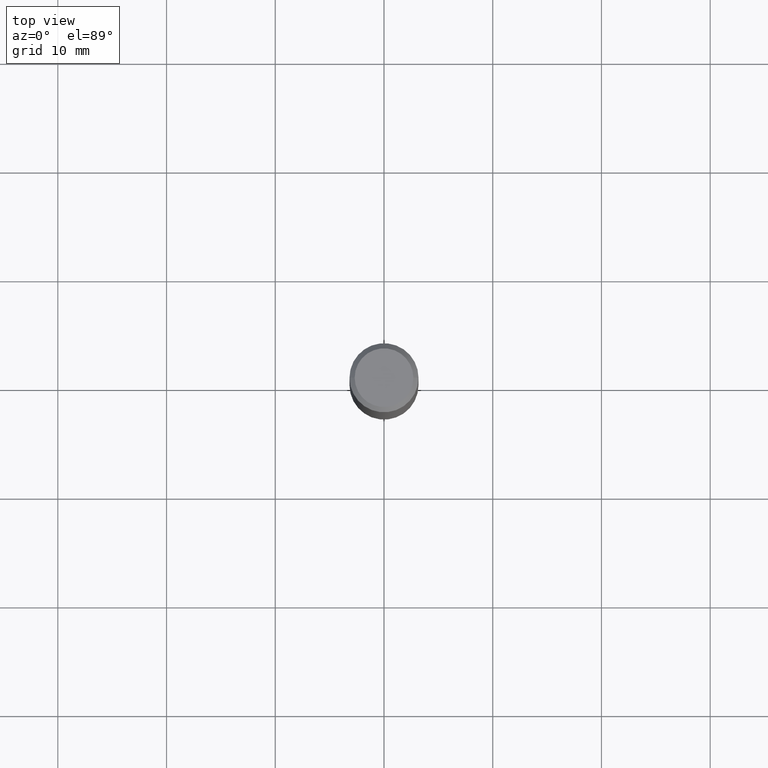
[diagram: clean part render]
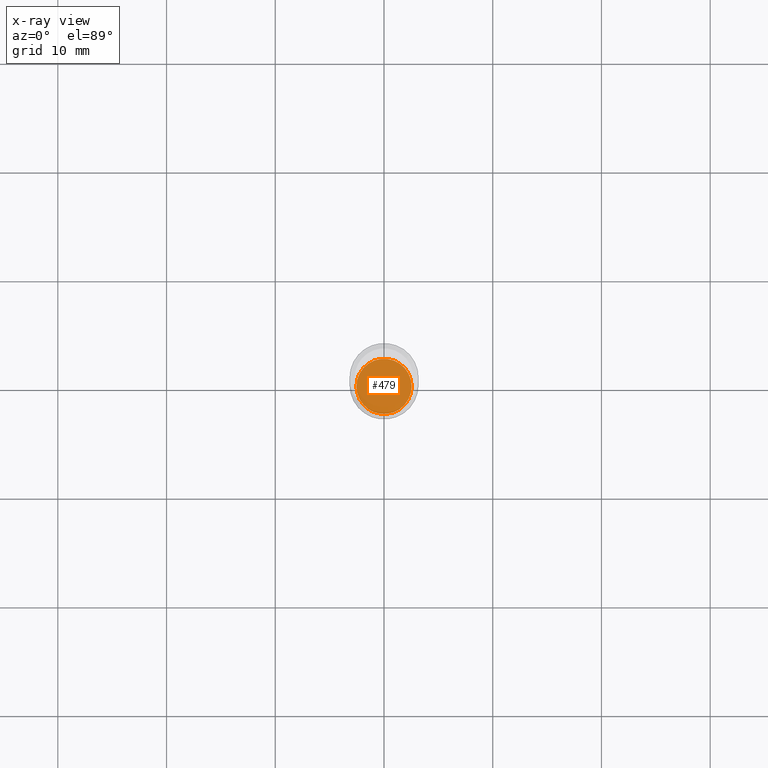
[diagram: x-ray — body ghosted, one internal face saturated and labeled with its STEP entity id]
A machine part, top view, then the same camera in x-ray: the body is ghosted and one INTERNAL B-rep face — a face not visible from any outside direction — is saturated and labeled: STEP entity #479.
In plain terms, the highlighted planar face has unit normal (-0, 0, 1).
Its self-contained STEP definition (entity closure, byte-faithful):
#4 = CIRCLE ( 'NONE', #188, 0.1000000000000000056 ) ;
#28 = AXIS2_PLACEMENT_3D ( 'NONE', #431, #394, #325 ) ;
#35 = DIRECTION ( 'NONE',  ( 1.000000000000000000, -6.982962677686264344E-15, 0.000000000000000000 ) ) ;
#67 = DIRECTION ( 'NONE',  ( -2.445468806185136597E-29, 3.491481338843145583E-15, 1.000000000000000000 ) ) ;
#84 = ORIENTED_EDGE ( 'NONE', *, *, #88, .F. ) ;
#88 = EDGE_CURVE ( 'NONE', #277, #202, #4, .T. ) ;
#120 = EDGE_CURVE ( 'NONE', #202, #277, #335, .T. ) ;
#139 = CARTESIAN_POINT ( 'NONE',  ( 4.465426040094059556E-29, -6.375444924727584257E-15, -1.826000000000000068 ) ) ;
#188 = AXIS2_PLACEMENT_3D ( 'NONE', #139, #337, #35 ) ;
#202 = VERTEX_POINT ( 'NONE', #407 ) ;
#240 = AXIS2_PLACEMENT_3D ( 'NONE', #367, #67, #294 ) ;
#277 = VERTEX_POINT ( 'NONE', #416 ) ;
#280 = PLANE ( 'NONE',  #28 ) ;
#294 = DIRECTION ( 'NONE',  ( 1.000000000000000000, -6.982962677686264344E-15, 0.000000000000000000 ) ) ;
#325 = DIRECTION ( 'NONE',  ( 1.000000000000000000, -6.982962677686265922E-15, 4.876176775795935793E-29 ) ) ;
#335 = CIRCLE ( 'NONE', #240, 0.1000000000000000056 ) ;
#337 = DIRECTION ( 'NONE',  ( -2.445468806185136597E-29, 3.491481338843145583E-15, 1.000000000000000000 ) ) ;
#350 = FACE_OUTER_BOUND ( 'NONE', #433, .T. ) ;
#367 = CARTESIAN_POINT ( 'NONE',  ( 4.465426040094059556E-29, -6.375444924727584257E-15, -1.826000000000000068 ) ) ;
#391 = ORIENTED_EDGE ( 'NONE', *, *, #120, .F. ) ;
#394 = DIRECTION ( 'NONE',  ( -2.438088387897960049E-29, 3.491481338843145188E-15, 1.000000000000000000 ) ) ;
#407 = CARTESIAN_POINT ( 'NONE',  ( 0.1000000000000000056, -7.073741192496210140E-15, -1.826000000000000068 ) ) ;
#416 = CARTESIAN_POINT ( 'NONE',  ( -0.1000000000000000056, -5.662252961793372239E-15, -1.826000000000000068 ) ) ;
#431 = CARTESIAN_POINT ( 'NONE',  ( 4.465426040094059556E-29, -6.375444924727584257E-15, -1.826000000000000068 ) ) ;
#433 = EDGE_LOOP ( 'NONE', ( #391, #84 ) ) ;
#479 = ADVANCED_FACE ( 'NONE', ( #350 ), #280, .F. ) ;